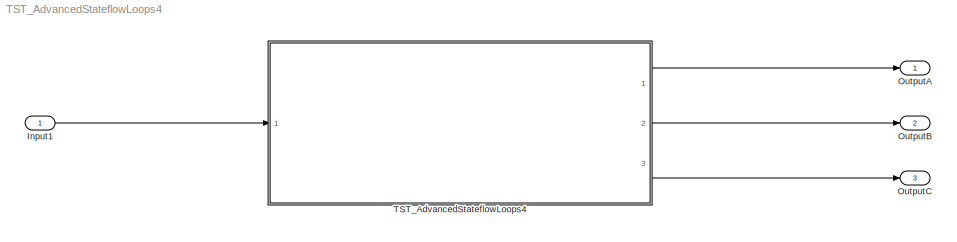
MODEL TST_AdvancedStateflowLoops4
KIND model
BLOCK [Inport] Input1
  BusOutputAsStruct = on
  IconDisplay = Port number
  OutDataTypeStr = uint32
  SID = 23
BLOCK [Outport] OutputA
  IconDisplay = Port number
  OutDataTypeStr = double
  PortDimensions = 1
  SID = 25
BLOCK [Outport] OutputB
  IconDisplay = Port number
  OutDataTypeStr = double
  Port = 2
  PortDimensions = 1
  SID = 32
BLOCK [Outport] OutputC
  IconDisplay = Port number
  OutDataTypeStr = double
  Port = 3
  PortDimensions = 1
  SID = 37
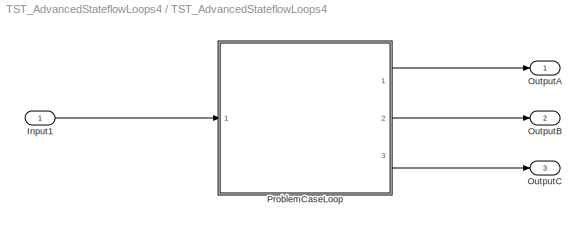
BLOCK [SubSystem] TST_AdvancedStateflowLoops4
  Ports = [1, 3]
  RequestExecContextInheritance = off
  SID = 2
  TreatAsAtomicUnit = on
BLOCK [Inport] TST_AdvancedStateflowLoops4/Input1
  BusOutputAsStruct = on
  IconDisplay = Port number
  OutDataTypeStr = uint32
  SID = 39
BLOCK [Outport] TST_AdvancedStateflowLoops4/OutputA
  IconDisplay = Port number
  OutDataTypeStr = double
  PortDimensions = 1
  SID = 40
BLOCK [Outport] TST_AdvancedStateflowLoops4/OutputB
  IconDisplay = Port number
  OutDataTypeStr = double
  Port = 2
  PortDimensions = 1
  SID = 41
BLOCK [Outport] TST_AdvancedStateflowLoops4/OutputC
  IconDisplay = Port number
  OutDataTypeStr = double
  Port = 3
  PortDimensions = 1
  SID = 42
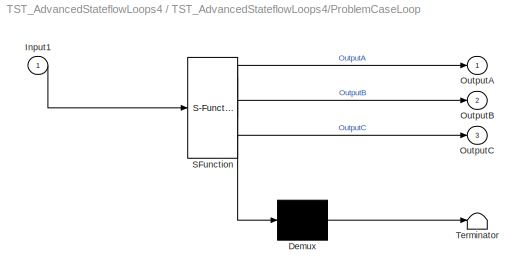
BLOCK [SubSystem] TST_AdvancedStateflowLoops4/ProblemCaseLoop
  ErrorFcn = Stateflow.Translate.translate
  PermitHierarchicalResolution = ExplicitOnly
  Ports = [1, 3]
  RequestExecContextInheritance = off
  SFBlockType = Chart
  SID = 56
  TreatAsAtomicUnit = on
BLOCK [Demux] TST_AdvancedStateflowLoops4/ProblemCaseLoop/ Demux 
  Outputs = 1
  Ports = [1, 1]
  SID = 56::18
BLOCK [S-Function] TST_AdvancedStateflowLoops4/ProblemCaseLoop/ SFunction 
  EnableBusSupport = off
  FunctionName = sf_sfun
  PortCounts = [1 4]
  Ports = [1, 4]
  SFcnIsStateOwnerBlock = off
  SFunctionDeploymentMode = off
  SID = 56::17
  Tag = Stateflow S-Function 3
BLOCK [Terminator] TST_AdvancedStateflowLoops4/ProblemCaseLoop/ Terminator 
  SID = 56::19
BLOCK [Inport] TST_AdvancedStateflowLoops4/ProblemCaseLoop/Input1
  IconDisplay = Port number
  SID = 56::9
BLOCK [Outport] TST_AdvancedStateflowLoops4/ProblemCaseLoop/OutputA
  IconDisplay = Port number
  SID = 56::10
BLOCK [Outport] TST_AdvancedStateflowLoops4/ProblemCaseLoop/OutputB
  IconDisplay = Port number
  Port = 2
  SID = 56::11
BLOCK [Outport] TST_AdvancedStateflowLoops4/ProblemCaseLoop/OutputC
  IconDisplay = Port number
  Port = 3
  SID = 56::12
LINE Input1:1 -> TST_AdvancedStateflowLoops4:1
LINE TST_AdvancedStateflowLoops4/Input1:1 -> TST_AdvancedStateflowLoops4/ProblemCaseLoop:1
LINE TST_AdvancedStateflowLoops4/ProblemCaseLoop/ Demux :1 -> TST_AdvancedStateflowLoops4/ProblemCaseLoop/ Terminator :1
LINE TST_AdvancedStateflowLoops4/ProblemCaseLoop/ SFunction :1 -> TST_AdvancedStateflowLoops4/ProblemCaseLoop/ Demux :1
LINE TST_AdvancedStateflowLoops4/ProblemCaseLoop/ SFunction :2 -> TST_AdvancedStateflowLoops4/ProblemCaseLoop/OutputA:1
LINE TST_AdvancedStateflowLoops4/ProblemCaseLoop/ SFunction :3 -> TST_AdvancedStateflowLoops4/ProblemCaseLoop/OutputB:1
LINE TST_AdvancedStateflowLoops4/ProblemCaseLoop/ SFunction :4 -> TST_AdvancedStateflowLoops4/ProblemCaseLoop/OutputC:1
LINE TST_AdvancedStateflowLoops4/ProblemCaseLoop/Input1:1 -> TST_AdvancedStateflowLoops4/ProblemCaseLoop/ SFunction :1
LINE TST_AdvancedStateflowLoops4/ProblemCaseLoop:1 -> TST_AdvancedStateflowLoops4/OutputA:1
LINE TST_AdvancedStateflowLoops4/ProblemCaseLoop:2 -> TST_AdvancedStateflowLoops4/OutputB:1
LINE TST_AdvancedStateflowLoops4/ProblemCaseLoop:3 -> TST_AdvancedStateflowLoops4/OutputC:1
LINE TST_AdvancedStateflowLoops4:1 -> OutputA:1
LINE TST_AdvancedStateflowLoops4:2 -> OutputB:1
LINE TST_AdvancedStateflowLoops4:3 -> OutputC:1
CHART TST_AdvancedStateflowLoops4/ProblemCaseLoop states=6 transitions=6
  STATE_LABEL 'This flowgraph shows a current problem case for the code-generator,\\nwhere the first vertex of the loop is not the one with the loop condition'
  STATE_LABEL '#2'
  STATE_LABEL '#1'
  STATE_LABEL '#3'
  STATE_LABEL '#5'
  STATE_LABEL '#4'
